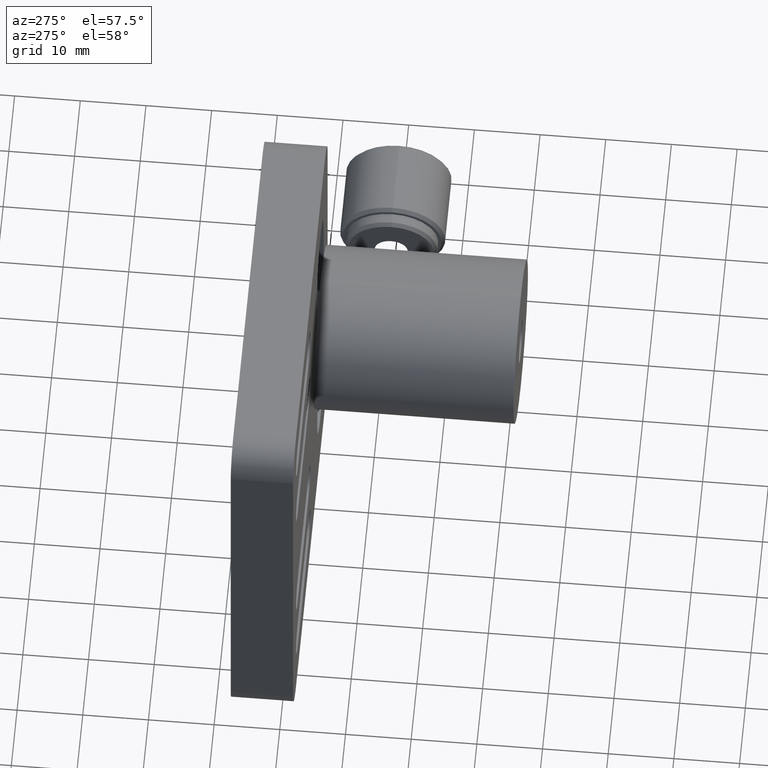
[diagram: clean part render]
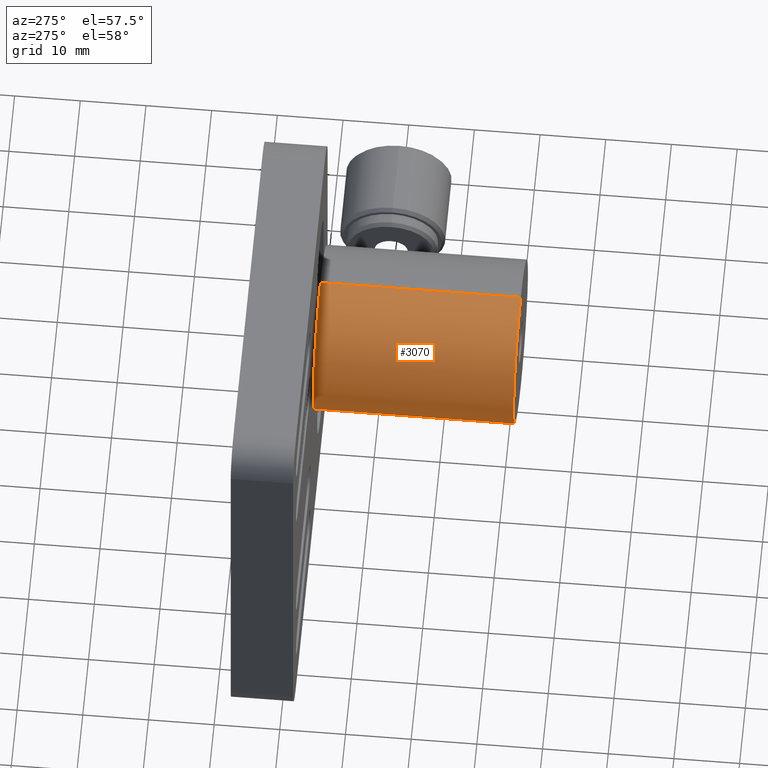
[diagram: same view with one face highlighted and labeled with its STEP entity id]
A machine part, auxiliary view. The second image highlights one B-rep face of the part: STEP entity #3070.
In plain terms, the highlighted cylindrical surface (partial cylindrical patch) has radius 12.5 mm, axis along (-0, 1, 0).
Its self-contained STEP definition (entity closure, byte-faithful):
#280 = ORIENTED_EDGE ( 'NONE', *, *, #2583, .T. ) ;
#338 = VERTEX_POINT ( 'NONE', #3783 ) ;
#349 = LINE ( 'NONE', #1155, #3459 ) ;
#602 = CARTESIAN_POINT ( 'NONE',  ( 19.40735694822886600, -11.86148955495003500, -12.49999999999996600 ) ) ;
#627 = FACE_OUTER_BOUND ( 'NONE', #1981, .T. ) ;
#762 = AXIS2_PLACEMENT_3D ( 'NONE', #1693, #1681, #2058 ) ;
#781 = EDGE_CURVE ( 'NONE', #338, #1000, #349, .T. ) ;
#816 = DIRECTION ( 'NONE',  ( 0.0000000000000000000, -1.665334536937722200E-015, 1.000000000000000000 ) ) ;
#1000 = VERTEX_POINT ( 'NONE', #602 ) ;
#1009 = DIRECTION ( 'NONE',  ( 0.0000000000000000000, 1.665334536937722200E-015, -1.000000000000000000 ) ) ;
#1025 = ORIENTED_EDGE ( 'NONE', *, *, #4269, .T. ) ;
#1037 = CARTESIAN_POINT ( 'NONE',  ( 19.40735694822888400, -42.36148955495005500, -1.229073528152741800E-014 ) ) ;
#1155 = CARTESIAN_POINT ( 'NONE',  ( 19.40735694822888400, -42.36148955495003300, -12.50000000000010700 ) ) ;
#1228 = AXIS2_PLACEMENT_3D ( 'NONE', #3032, #3712, #1009 ) ;
#1261 = CARTESIAN_POINT ( 'NONE',  ( 19.40735694822886600, -11.86148955495007100, 12.50000000000002800 ) ) ;
#1326 = AXIS2_PLACEMENT_3D ( 'NONE', #1037, #4132, #816 ) ;
#1407 = LINE ( 'NONE', #3559, #2048 ) ;
#1681 = DIRECTION ( 'NONE',  ( 1.105886506171588900E-015, -1.000000000000000000, -1.450496718044656800E-015 ) ) ;
#1693 = CARTESIAN_POINT ( 'NONE',  ( 19.40735694822885200, -11.86148955495005300, 3.194941461883460600E-014 ) ) ;
#1981 = EDGE_LOOP ( 'NONE', ( #3501, #4185, #280, #1025 ) ) ;
#2048 = VECTOR ( 'NONE', #2293, 1000.000000000000000 ) ;
#2058 = DIRECTION ( 'NONE',  ( 0.0000000000000000000, 1.387778780781435200E-015, -1.000000000000000000 ) ) ;
#2293 = DIRECTION ( 'NONE',  ( -1.105886506171588900E-015, 1.000000000000000000, 1.450496718044657000E-015 ) ) ;
#2583 = EDGE_CURVE ( 'NONE', #3514, #2621, #1407, .T. ) ;
#2621 = VERTEX_POINT ( 'NONE', #1261 ) ;
#3032 = CARTESIAN_POINT ( 'NONE',  ( 19.40735694822888400, -42.36148955495005500, -1.229073528152741800E-014 ) ) ;
#3070 = ADVANCED_FACE ( 'NONE', ( #627 ), #3520, .T. ) ;
#3133 = CARTESIAN_POINT ( 'NONE',  ( 19.40735694822886600, -42.36148955495007600, 12.49999999999998600 ) ) ;
#3459 = VECTOR ( 'NONE', #4146, 1000.000000000000000 ) ;
#3472 = CIRCLE ( 'NONE', #1228, 12.50000000000009400 ) ;
#3501 = ORIENTED_EDGE ( 'NONE', *, *, #781, .F. ) ;
#3514 = VERTEX_POINT ( 'NONE', #3133 ) ;
#3520 = CYLINDRICAL_SURFACE ( 'NONE', #1326, 12.50000000000009400 ) ;
#3559 = CARTESIAN_POINT ( 'NONE',  ( 19.40735694822888400, -42.36148955495007600, 12.50000000000008200 ) ) ;
#3712 = DIRECTION ( 'NONE',  ( 1.105886506171588900E-015, -1.000000000000000000, -1.450496718044656800E-015 ) ) ;
#3783 = CARTESIAN_POINT ( 'NONE',  ( 19.40735694822886600, -42.36148955495003300, -12.50000000000000900 ) ) ;
#3943 = CIRCLE ( 'NONE', #762, 12.50000000000009400 ) ;
#4132 = DIRECTION ( 'NONE',  ( -1.105886506171588900E-015, 1.000000000000000000, 1.450496718044657000E-015 ) ) ;
#4146 = DIRECTION ( 'NONE',  ( -1.105886506171588900E-015, 1.000000000000000000, 1.450496718044657000E-015 ) ) ;
#4185 = ORIENTED_EDGE ( 'NONE', *, *, #4230, .F. ) ;
#4230 = EDGE_CURVE ( 'NONE', #3514, #338, #3472, .T. ) ;
#4269 = EDGE_CURVE ( 'NONE', #2621, #1000, #3943, .T. ) ;